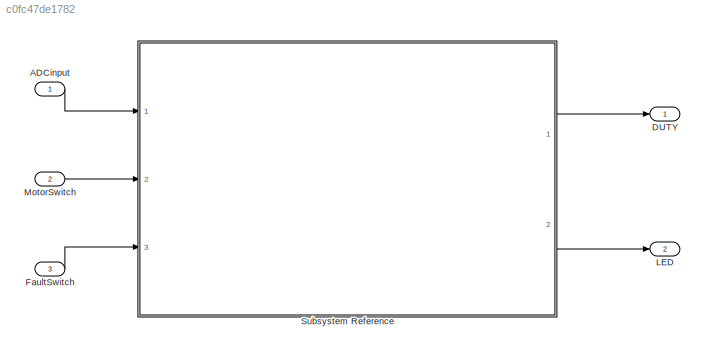
MODEL slx_c0fc47de1782
KIND model
CONFIG AbsTol = auto
CONFIG EnableMultiTasking = off
CONFIG FixedStep = Tctr
CONFIG MaxStep = auto
CONFIG MinStep = auto
CONFIG RelTol = 1e-3
CONFIG SampleTimeConstraint = Unconstrained
CONFIG SolverName = FixedStepDiscrete
CONFIG StartTime = 0.0
CONFIG StopTime = 10.0
BLOCK [Inport] ADCinput
  OutDataTypeStr = uint16
  PortDimensions = 5
BLOCK [Outport] DUTY
  PortDimensions = 3
BLOCK [Inport] FaultSwitch
  OutDataTypeStr = boolean
  Port = 3
  PortDimensions = 1
BLOCK [Outport] LED
  Port = 2
  PortDimensions = 3
BLOCK [Inport] MotorSwitch
  OutDataTypeStr = boolean
  Port = 2
  PortDimensions = 1
BLOCK [SubSystem] Subsystem Reference
  Ports = [3, 2]
  ReferencedSubsystem = FOC_Sub_StateMch
  RequestExecContextInheritance = off
LINE ADCinput:1 -> Subsystem Reference:1
LINE FaultSwitch:1 -> Subsystem Reference:3
LINE MotorSwitch:1 -> Subsystem Reference:2
LINE Subsystem Reference:1 -> DUTY:1
LINE Subsystem Reference:2 -> LED:1
